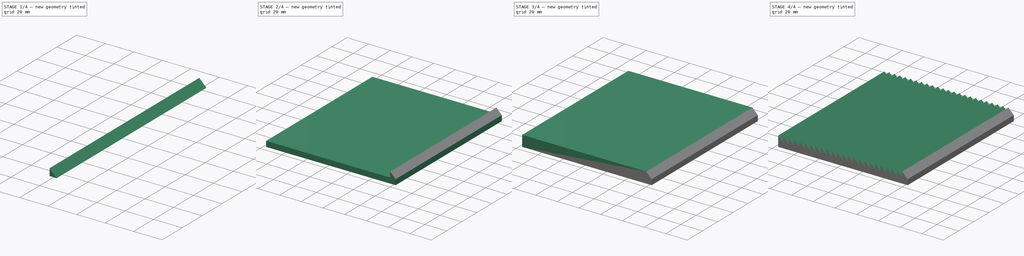
[diagram: build sequence overview — one tinted view per stage of 4, left to right]
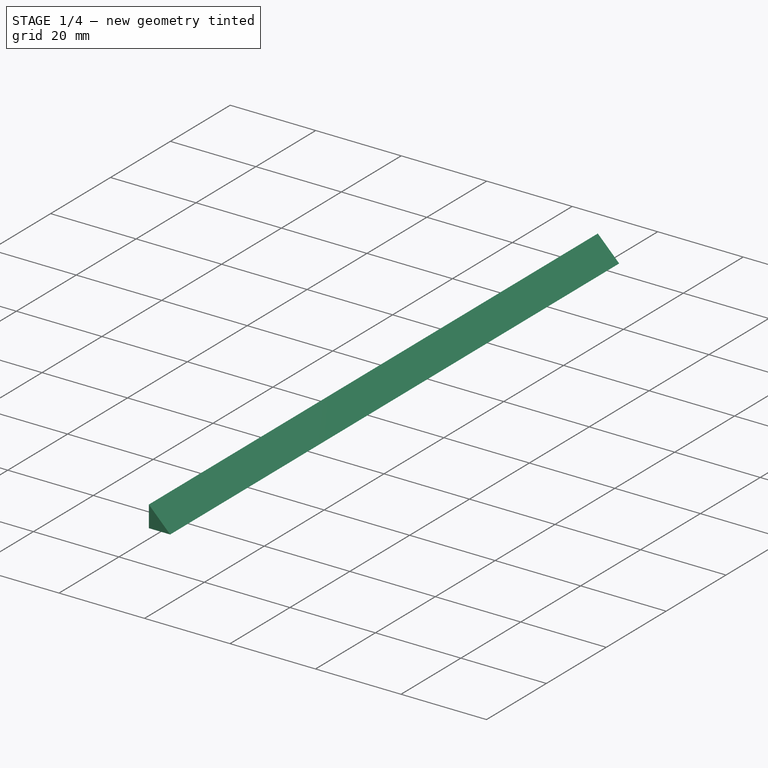
[diagram: stage 1 of 4 — iso view after this stage's code; geometry added in this stage tinted green]
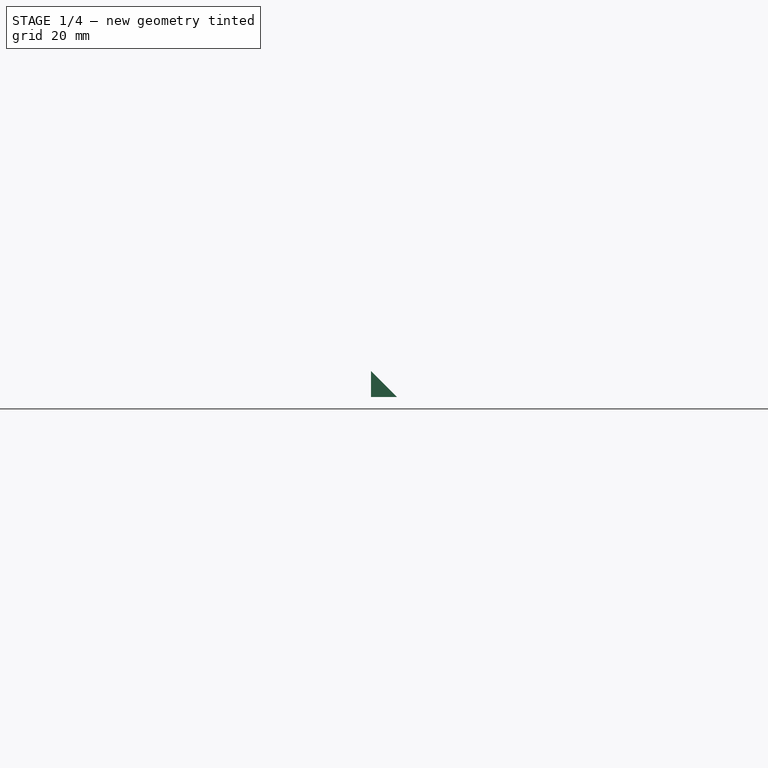
[diagram: stage 1 of 4 — front view after this stage's code; geometry added in this stage tinted green]
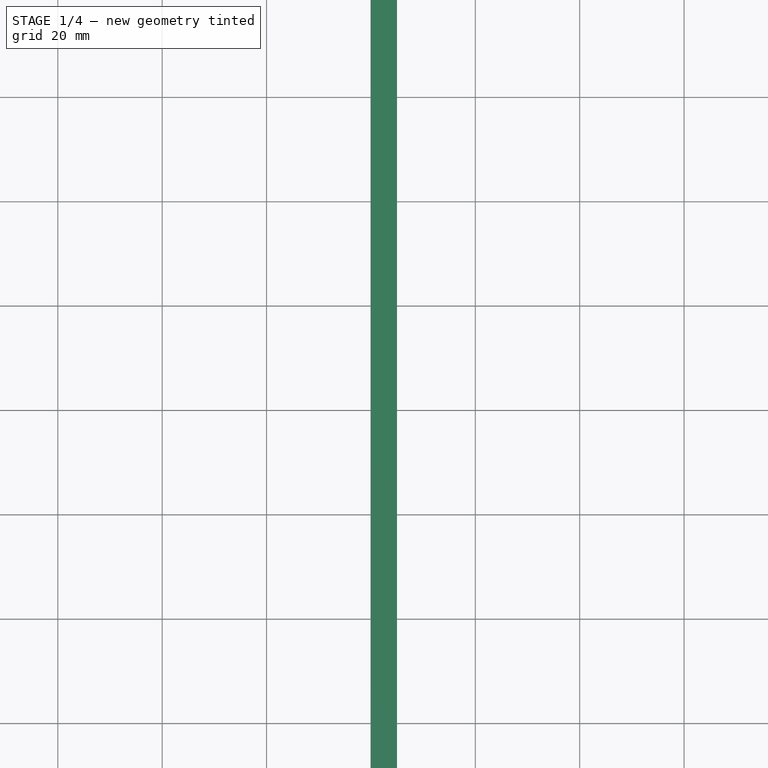
[diagram: stage 1 of 4 — top view after this stage's code; geometry added in this stage tinted green]
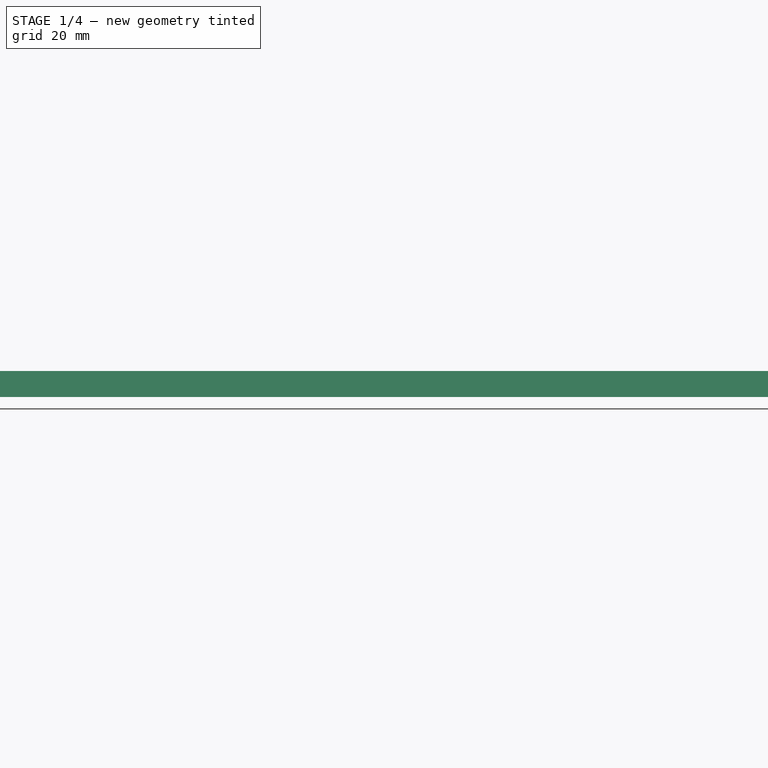
[diagram: stage 1 of 4 — right view after this stage's code; geometry added in this stage tinted green]
FCSTD DOCUMENT  (FreeCAD 1.0R39109 (Git))
Label: 5mm5mm
License: All rights reserved
LicenseURL: https://en.wikipedia.org/wiki/All_rights_reserved
objects: PartDesign::Pad×6, PartDesign::Pocket×5, Sketcher::SketchObject×4, PartDesign::Body×1
note: 42 computed .brp shape members not serialized (recipe doc carries the construction recipe); baked Part::Feature solids carry a one-line shape summary decoded from their .brp

FEATURE [Sketcher::SketchObject] Sketch
  ArcFitTolerance = 1e-06
  AttachmentSupport = -> [XY_Plane]
  FullyConstrained = true
  MakeInternals = false
  MapMode = 5
  sketch-geometry (4):
    g0: LineSegment StartX=0 StartY=0 StartZ=0 EndX=5 EndY=0 EndZ=0
    g1: LineSegment StartX=5 StartY=0 StartZ=0 EndX=5 EndY=140 EndZ=0
    g2: LineSegment StartX=5 StartY=140 StartZ=0 EndX=0 EndY=140 EndZ=0
    g3: LineSegment StartX=0 StartY=140 StartZ=0 EndX=0 EndY=0 EndZ=0
  constraints (11):
    c: Coincident(g0,g1)
    c: Coincident(g1,g2)
    c: Coincident(g2,g3)
    c: Coincident(g3,g0)
    c: Horizontal(g0)
    c: Horizontal(g2)
    c: Vertical(g1)
    c: Vertical(g3)
    c: Distance(g1,g3) = 5
    c: Distance(g0,g2) = 140
    c: Coincident(g0,g-1)
FEATURE [PartDesign::Pad] Pad
  Direction = (0,0,1)
  Length = 10
  Length2 = 10
  Profile = -> Sketch
  ReferenceAxis = -> Sketch [N_Axis]
  Refine = true
  Suppressed = false
  Type = 0
FEATURE [Sketcher::SketchObject] Sketch001
  ArcFitTolerance = 1e-06
  AttachmentSupport = -> [Pad]
  FullyConstrained = true
  MakeInternals = false
  MapMode = 5
  Placement = pos=(0,0,0) rot=(1,0,0;1.5708rad)
  sketch-geometry (3):
    g0: LineSegment StartX=0 StartY=0 StartZ=0 EndX=0 EndY=5 EndZ=0
    g1: LineSegment StartX=0 StartY=0 StartZ=0 EndX=5 EndY=0 EndZ=0
    g2: LineSegment StartX=5 StartY=0 StartZ=0 EndX=0 EndY=5 EndZ=0
  constraints (8):
    c: Distance(g0) = 5
    c: Coincident(g0,g-1)
    c: PointOnObject(g0,g-2)
    c: Distance(g1) = 5
    c: Coincident(g1,g0)
    c: PointOnObject(g1,g-1)
    c: Coincident(g2,g1)
    c: Coincident(g2,g0)
FEATURE [PartDesign::Pad] Pad001
  BaseFeature = -> Pad
  Direction = (0,-1,2e-16)
  Length = 10
  Length2 = 10
  Profile = -> Sketch001
  ReferenceAxis = -> Sketch001 [N_Axis]
  Refine = true
  Suppressed = false
  Type = 0
FEATURE [PartDesign::Pocket] Pocket
  BaseFeature = -> Pad001
  Direction = (0,1,0)
  Length = 140
  Length2 = 5
  Profile = -> Pad001 [Face1]
  Refine = true
  Suppressed = false
  Type = 0
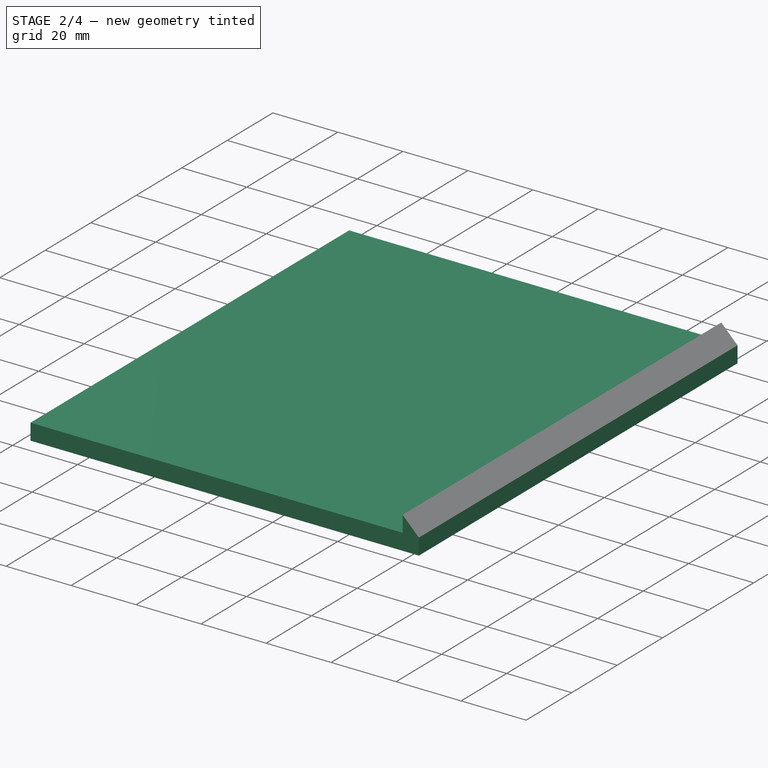
[diagram: stage 2 of 4 — iso view after this stage's code; geometry added in this stage tinted green]
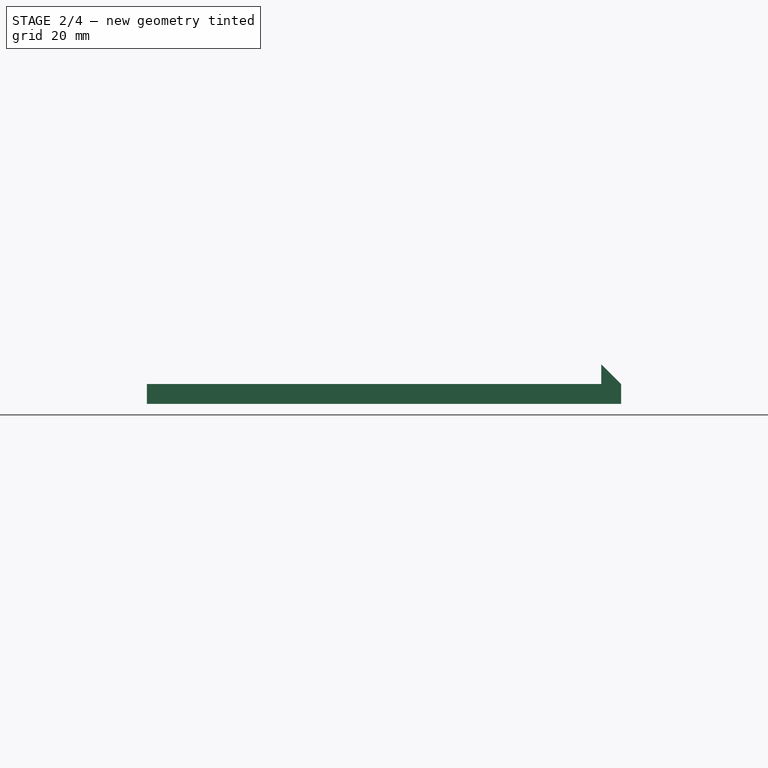
[diagram: stage 2 of 4 — front view after this stage's code; geometry added in this stage tinted green]
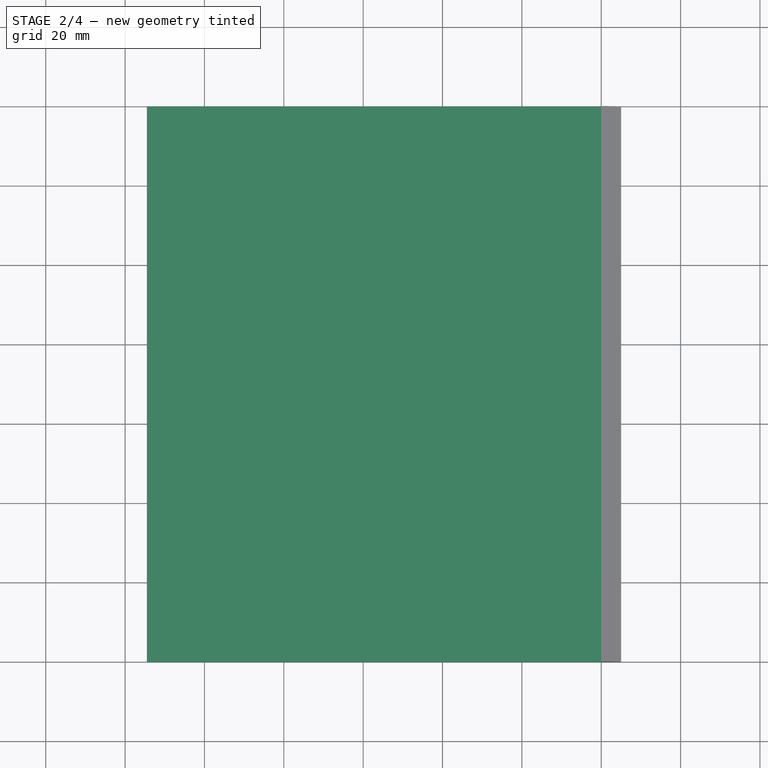
[diagram: stage 2 of 4 — top view after this stage's code; geometry added in this stage tinted green]
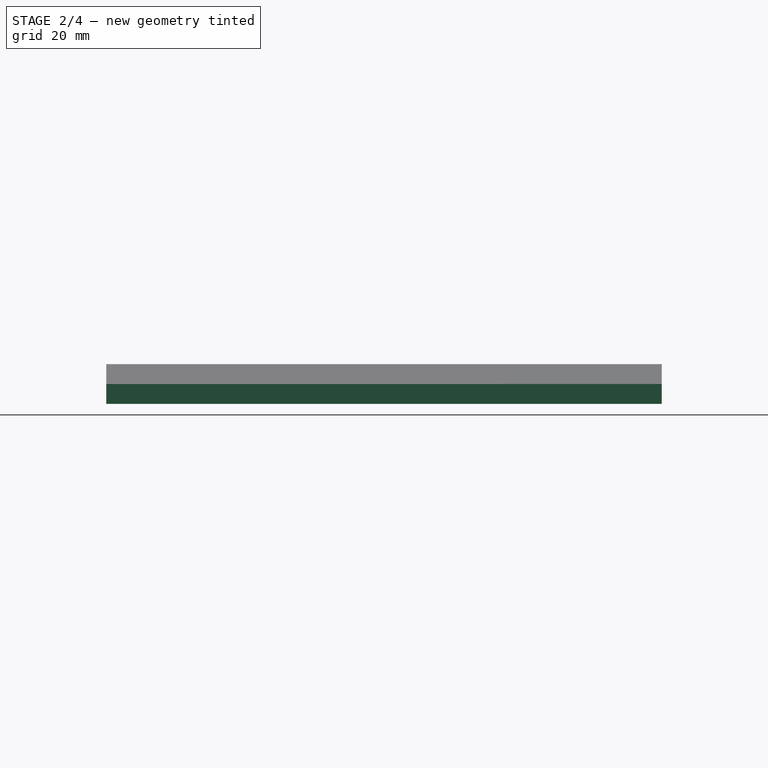
[diagram: stage 2 of 4 — right view after this stage's code; geometry added in this stage tinted green]
FEATURE [PartDesign::Pocket] Pocket001
  BaseFeature = -> Pocket
  Direction = (0,1,0)
  Length = 10
  Length2 = 5
  Profile = -> Pocket [Face3]
  Refine = true
  Suppressed = false
  Type = 0
FEATURE [PartDesign::Pad] Pad002
  BaseFeature = -> Pocket001
  Direction = (0,0,-1)
  Length = 5
  Length2 = 10
  Profile = -> Pocket001 [Face1]
  Refine = true
  Suppressed = false
  Type = 0
FEATURE [Sketcher::SketchObject] Sketch002
  ArcFitTolerance = 1e-06
  AttachmentSupport = -> [Pad002]
  FullyConstrained = true
  MakeInternals = false
  MapMode = 5
  Placement = pos=(0,0,0) rot=(0.57735,-0.57735,-0.57735;2.0944rad)
  sketch-geometry (4):
    g0: LineSegment StartX=0 StartY=0 StartZ=0 EndX=-140 EndY=0 EndZ=0
    g1: LineSegment StartX=-140 StartY=0 StartZ=0 EndX=-140 EndY=-5 EndZ=0
    g2: LineSegment StartX=-140 StartY=-5 StartZ=0 EndX=0 EndY=-5 EndZ=0
    g3: LineSegment StartX=0 StartY=-5 StartZ=0 EndX=0 EndY=0 EndZ=0
  constraints (11):
    c: Coincident(g0,g1)
    c: Coincident(g1,g2)
    c: Coincident(g2,g3)
    c: Coincident(g3,g0)
    c: Horizontal(g0)
    c: Horizontal(g2)
    c: Vertical(g1)
    c: Vertical(g3)
    c: Distance(g1,g3) = 140
    c: Distance(g0,g2) = 5
    c: Coincident(g0,g-1)
FEATURE [PartDesign::Pad] Pad003
  BaseFeature = -> Pad002
  Direction = (-1,0,0)
  Length = 114.5
  Length2 = 10
  Profile = -> Sketch002
  ReferenceAxis = -> Sketch002 [N_Axis]
  Refine = true
  Suppressed = false
  Type = 0
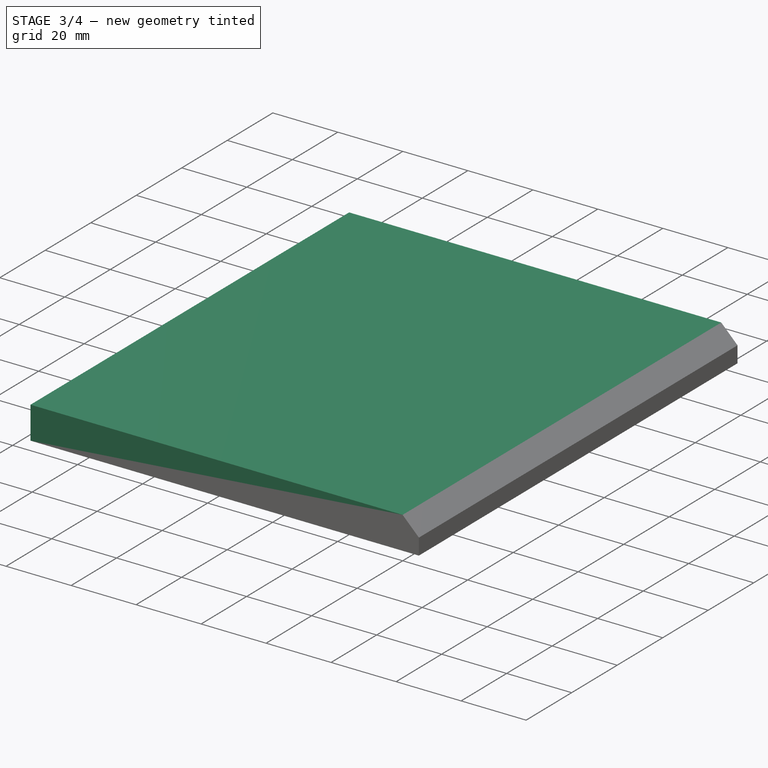
[diagram: stage 3 of 4 — iso view after this stage's code; geometry added in this stage tinted green]
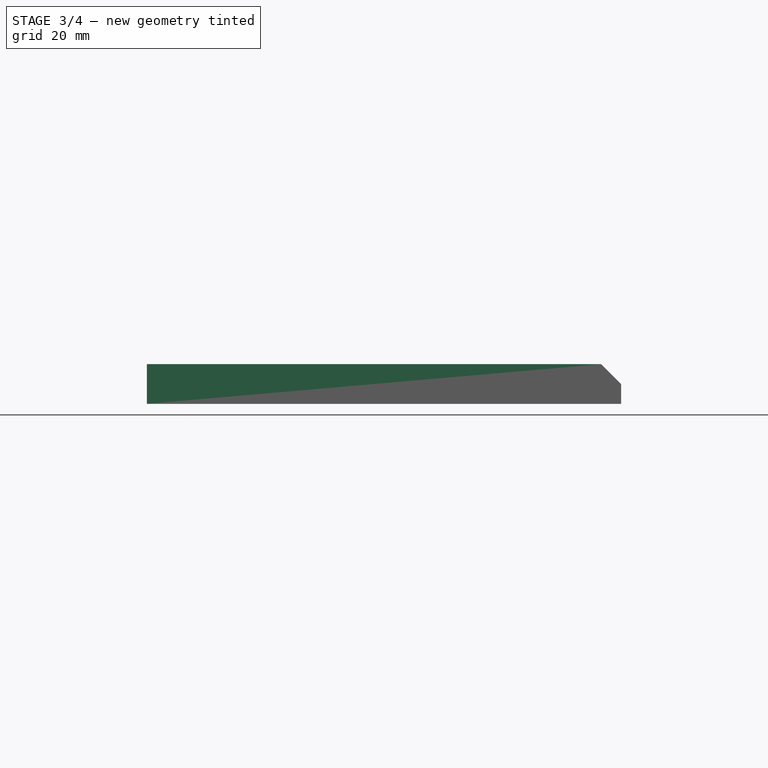
[diagram: stage 3 of 4 — front view after this stage's code; geometry added in this stage tinted green]
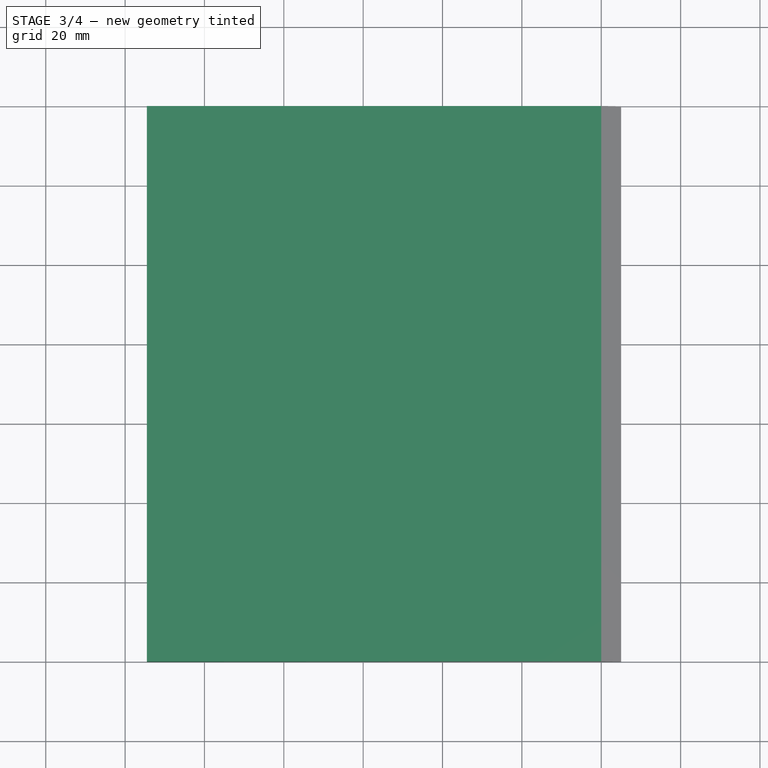
[diagram: stage 3 of 4 — top view after this stage's code; geometry added in this stage tinted green]
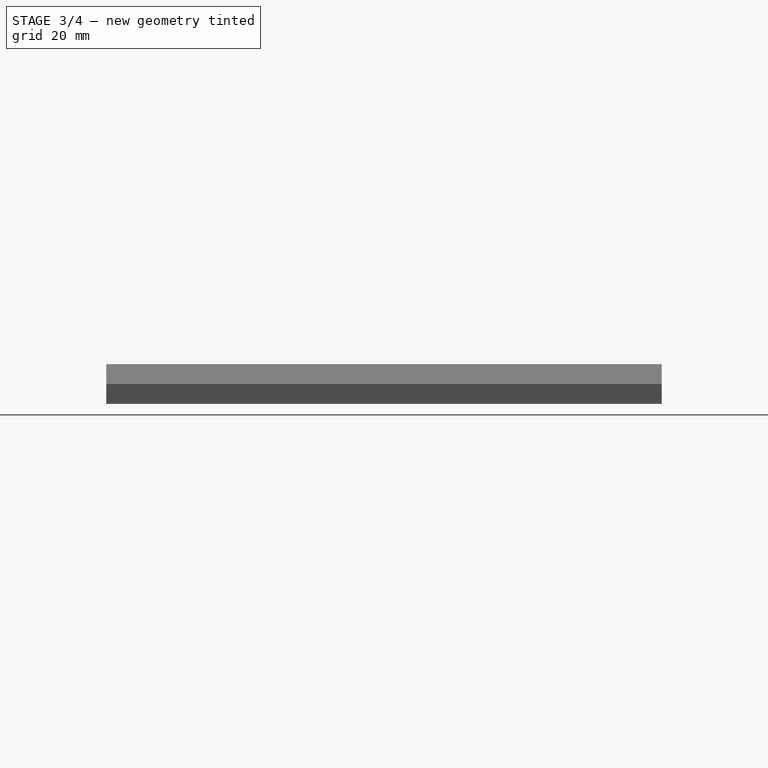
[diagram: stage 3 of 4 — right view after this stage's code; geometry added in this stage tinted green]
FEATURE [PartDesign::Pad] Pad004
  BaseFeature = -> Pad003
  Direction = (-1,0,0)
  Length = 135
  Length2 = 10
  Profile = -> Pad003 [Face2]
  Refine = true
  Suppressed = false
  Type = 0
FEATURE [PartDesign::Pocket] Pocket002
  BaseFeature = -> Pad004
  Direction = (0,0,1)
  Length = 5
  Length2 = 5
  Profile = -> Pad004 [Face7]
  Refine = true
  Suppressed = false
  Type = 0
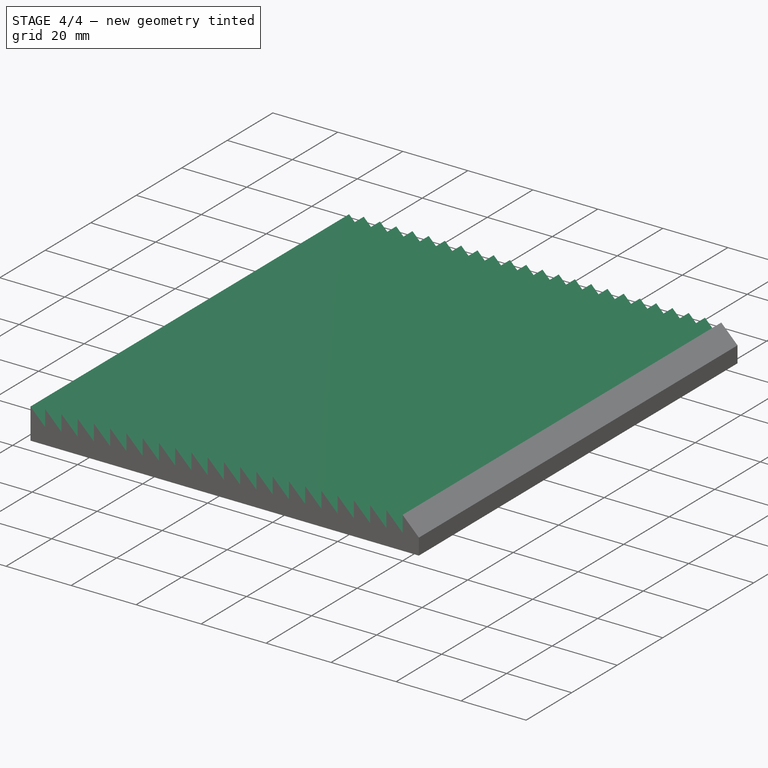
[diagram: stage 4 of 4 — iso view after this stage's code; geometry added in this stage tinted green]
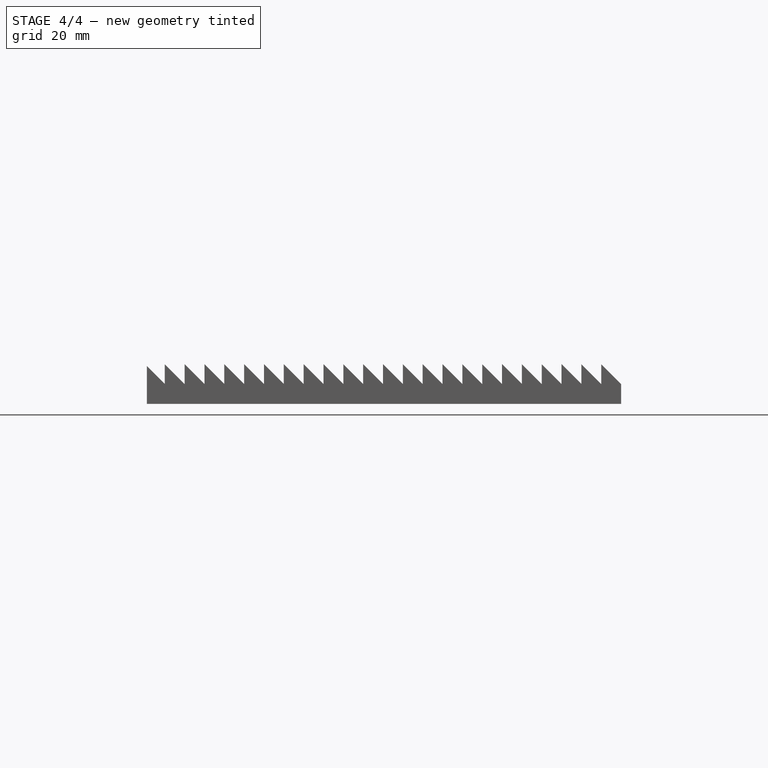
[diagram: stage 4 of 4 — front view after this stage's code; geometry added in this stage tinted green]
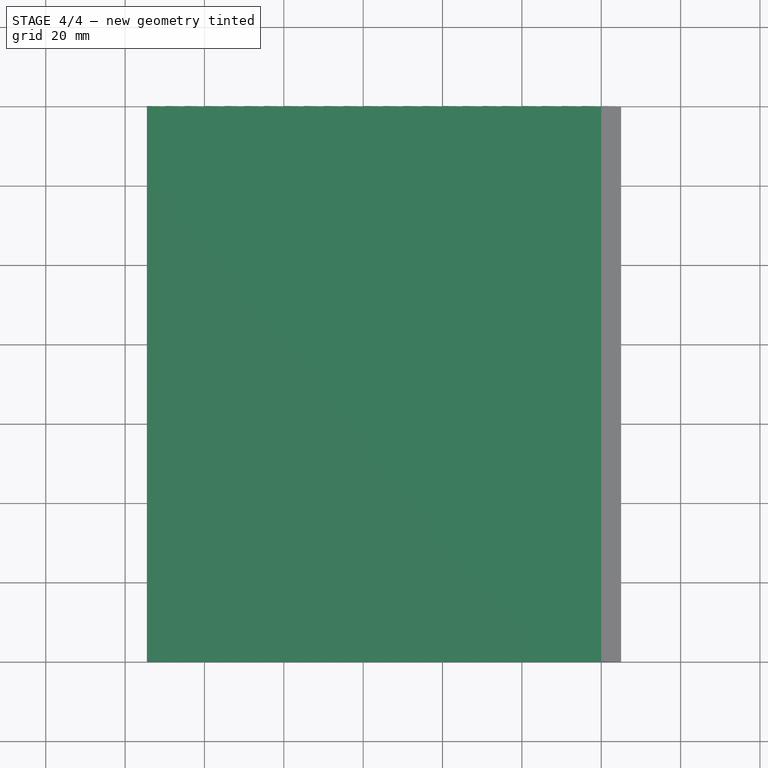
[diagram: stage 4 of 4 — top view after this stage's code; geometry added in this stage tinted green]
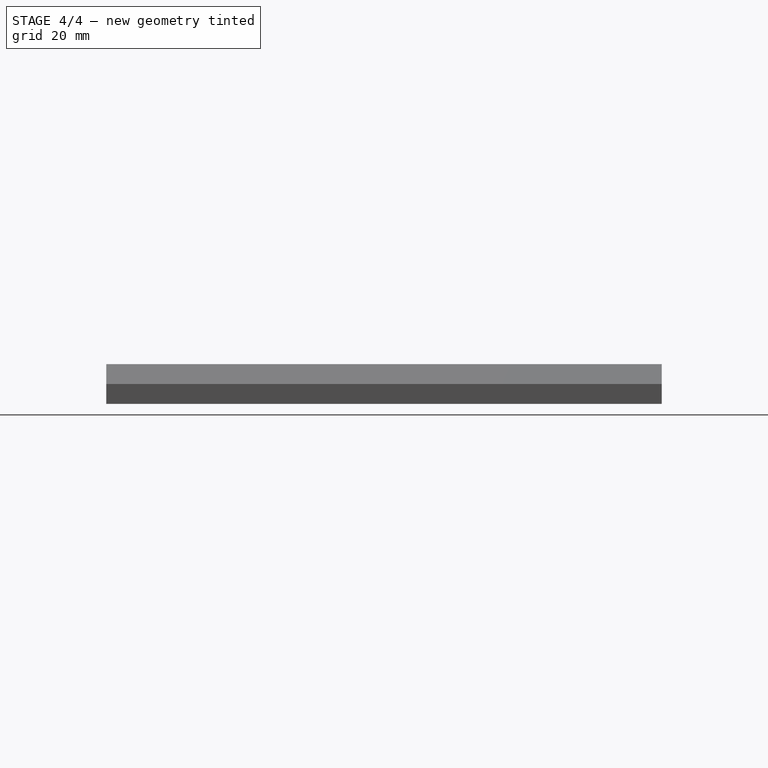
[diagram: stage 4 of 4 — right view after this stage's code; geometry added in this stage tinted green]
FEATURE [Sketcher::SketchObject] Sketch003
  ArcFitTolerance = 1e-06
  AttachmentSupport = -> [Pocket002]
  FullyConstrained = true
  MakeInternals = false
  MapMode = 5
  Placement = pos=(0,5e-16,0) rot=(1,0,0;1.5708rad)
  sketch-geometry (72):
    g0: LineSegment StartX=0 StartY=0 StartZ=0 EndX=5 EndY=0 EndZ=0
    g1: LineSegment StartX=0 StartY=0 StartZ=0 EndX=0 EndY=5 EndZ=0
    g2: LineSegment StartX=0 StartY=5 StartZ=0 EndX=5 EndY=0 EndZ=0
    g3: LineSegment StartX=0 StartY=0 StartZ=0 EndX=-5 EndY=0 EndZ=0
    g4: LineSegment StartX=-5 StartY=0 StartZ=0 EndX=-5 EndY=5 EndZ=0
    g5: LineSegment StartX=-5 StartY=5 StartZ=0 EndX=0 EndY=0 EndZ=0
    g6: LineSegment StartX=-5 StartY=0 StartZ=0 EndX=-10 EndY=0 EndZ=0
    g7: LineSegment StartX=-10 StartY=0 StartZ=0 EndX=-15 EndY=0 EndZ=0
    g8: LineSegment StartX=-15 StartY=0 StartZ=0 EndX=-20 EndY=0 EndZ=0
    g9: LineSegment StartX=-20 StartY=0 StartZ=0 EndX=-25 EndY=0 EndZ=0
    g10: LineSegment StartX=-25 StartY=0 StartZ=0 EndX=-30 EndY=0 EndZ=0
    g11: LineSegment StartX=-30 StartY=0 StartZ=0 EndX=-35 EndY=0 EndZ=0
    g12: LineSegment StartX=-35 StartY=0 StartZ=0 EndX=-40 EndY=0 EndZ=0
    g13: LineSegment StartX=-40 StartY=0 StartZ=0 EndX=-45 EndY=0 EndZ=0
    g14: LineSegment StartX=-45 StartY=0 StartZ=0 EndX=-50 EndY=0 EndZ=0
    g15: LineSegment StartX=-50 StartY=0 StartZ=0 EndX=-55 EndY=0 EndZ=0
    g16: LineSegment StartX=-55 StartY=0 StartZ=0 EndX=-60 EndY=0 EndZ=0
    g17: LineSegment StartX=-60 StartY=0 StartZ=0 EndX=-65 EndY=0 EndZ=0
    g18: LineSegment StartX=-65 StartY=0 StartZ=0 EndX=-70 EndY=0 EndZ=0
    g19: LineSegment StartX=-70 StartY=0 StartZ=0 EndX=-75 EndY=0 EndZ=0
    g20: LineSegment StartX=-75 StartY=0 StartZ=0 EndX=-80 EndY=0 EndZ=0
    g21: LineSegment StartX=-80 StartY=0 StartZ=0 EndX=-85 EndY=0 EndZ=0
    g22: LineSegment StartX=-85 StartY=0 StartZ=0 EndX=-90 EndY=0 EndZ=0
    g23: LineSegment StartX=-90 StartY=0 StartZ=0 EndX=-95 EndY=0 EndZ=0
    g24: LineSegment StartX=-95 StartY=0 StartZ=0 EndX=-100 EndY=0 EndZ=0
    g25: LineSegment StartX=-100 StartY=0 StartZ=0 EndX=-105 EndY=0 EndZ=0
    g26: LineSegment StartX=-105 StartY=0 StartZ=0 EndX=-110 EndY=0 EndZ=0
    g27: LineSegment StartX=-110 StartY=0 StartZ=0 EndX=-115 EndY=0 EndZ=0
    g28: LineSegment StartX=-115 StartY=0 StartZ=0 EndX=-115 EndY=5 EndZ=0
    g29: LineSegment StartX=-115 StartY=5 StartZ=0 EndX=-110 EndY=0 EndZ=0
    g30: LineSegment StartX=-110 StartY=0 StartZ=0 EndX=-110 EndY=5 EndZ=0
    g31: LineSegment StartX=-105 StartY=0 StartZ=0 EndX=-105 EndY=5 EndZ=0
    g32: LineSegment StartX=-100 StartY=0 StartZ=0 EndX=-100 EndY=5 EndZ=0
    g33: LineSegment StartX=-95 StartY=0 StartZ=0 EndX=-95 EndY=5 EndZ=0
    g34: LineSegment StartX=-90 StartY=0 StartZ=0 EndX=-90 EndY=5 EndZ=0
    g35: LineSegment StartX=-85 StartY=0 StartZ=0 EndX=-85 EndY=5 EndZ=0
    g36: LineSegment StartX=-80 StartY=0 StartZ=0 EndX=-80 EndY=5 EndZ=0
    g37: LineSegment StartX=-75 StartY=0 StartZ=0 EndX=-75 EndY=5 EndZ=0
    g38: LineSegment StartX=-70 StartY=0 StartZ=0 EndX=-70 EndY=5 EndZ=0
    g39: LineSegment StartX=-65 StartY=0 StartZ=0 EndX=-65 EndY=5 EndZ=0
    g40: LineSegment StartX=-60 StartY=0 StartZ=0 EndX=-60 EndY=5 EndZ=0
    g41: LineSegment StartX=-55 StartY=0 StartZ=0 EndX=-55 EndY=5 EndZ=0
    g42: LineSegment StartX=-50 StartY=0 StartZ=0 EndX=-50 EndY=5 EndZ=0
    g43: LineSegment StartX=-45 StartY=0 StartZ=0 EndX=-45 EndY=5 EndZ=0
    g44: LineSegment StartX=-40 StartY=0 StartZ=0 EndX=-40 EndY=5 EndZ=0
    g45: LineSegment StartX=-35 StartY=0 StartZ=0 EndX=-35 EndY=5 EndZ=0
    g46: LineSegment StartX=-30 StartY=0 StartZ=0 EndX=-30 EndY=5 EndZ=0
    g47: LineSegment StartX=-25 StartY=0 StartZ=0 EndX=-25 EndY=5 EndZ=0
    g48: LineSegment StartX=-20 StartY=0 StartZ=0 EndX=-20 EndY=5 EndZ=0
    g49: LineSegment StartX=-15 StartY=0 StartZ=0 EndX=-15 EndY=5 EndZ=0
    g50: LineSegment StartX=-10 StartY=0 StartZ=0 EndX=-10 EndY=5 EndZ=0
    g51: LineSegment StartX=-10 StartY=5 StartZ=0 EndX=-5 EndY=0 EndZ=0
    g52: LineSegment StartX=-15 StartY=5 StartZ=0 EndX=-10 EndY=0 EndZ=0
    g53: LineSegment StartX=-20 StartY=5 StartZ=0 EndX=-15 EndY=0 EndZ=0
    g54: LineSegment StartX=-25 StartY=5 StartZ=0 EndX=-20 EndY=0 EndZ=0
    g55: LineSegment StartX=-30 StartY=5 StartZ=0 EndX=-25 EndY=0 EndZ=0
    g56: LineSegment StartX=-35 StartY=5 StartZ=0 EndX=-30 EndY=0 EndZ=0
    g57: LineSegment StartX=-40 StartY=5 StartZ=0 EndX=-35 EndY=0 EndZ=0
    g58: LineSegment StartX=-45 StartY=5 StartZ=0 EndX=-40 EndY=0 EndZ=0
    g59: LineSegment StartX=-50 StartY=5 StartZ=0 EndX=-45 EndY=0 EndZ=0
    g60: LineSegment StartX=-55 StartY=5 StartZ=0 EndX=-50 EndY=0 EndZ=0
    g61: LineSegment StartX=-60 StartY=5 StartZ=0 EndX=-55 EndY=0 EndZ=0
    g62: LineSegment StartX=-65 StartY=5 StartZ=0 EndX=-60 EndY=0 EndZ=0
    g63: LineSegment StartX=-70 StartY=5 StartZ=0 EndX=-65 EndY=0 EndZ=0
    g64: LineSegment StartX=-75 StartY=5 StartZ=0 EndX=-70 EndY=0 EndZ=0
    g65: LineSegment StartX=-80 StartY=5 StartZ=0 EndX=-75 EndY=0 EndZ=0
    g66: LineSegment StartX=-85 StartY=5 StartZ=0 EndX=-80 EndY=0 EndZ=0
    g67: LineSegment StartX=-90 StartY=5 StartZ=0 EndX=-85 EndY=0 EndZ=0
    g68: LineSegment StartX=-95 StartY=5 StartZ=0 EndX=-90 EndY=0 EndZ=0
    g69: LineSegment StartX=-100 StartY=5 StartZ=0 EndX=-95 EndY=0 EndZ=0
    g70: LineSegment StartX=-105 StartY=5 StartZ=0 EndX=-100 EndY=0 EndZ=0
    g71: LineSegment StartX=-110 StartY=5 StartZ=0 EndX=-105 EndY=0 EndZ=0
  constraints (192):
    c: Distance(g0) = 5
    c: Coincident(g0,g-1)
    c: PointOnObject(g0,g-1)
    c: Distance(g1) = 5
    c: Coincident(g1,g0)
    c: PointOnObject(g1,g-2)
    c: Coincident(g2,g1)
    c: Coincident(g2,g0)
    c: Distance(g3) = 5
    c: Coincident(g3,g0)
    c: PointOnObject(g3,g-1)
    c: Distance(g4) = 5
    c: Coincident(g4,g3)
    c: Vertical(g4)
    c: Coincident(g5,g4)
    c: Coincident(g5,g0)
    c: Distance(g6) = 5
    c: Coincident(g6,g3)
    c: PointOnObject(g6,g-1)
    c: Distance(g7) = 5
    c: Coincident(g7,g6)
    c: PointOnObject(g7,g-1)
    c: Distance(g8) = 5
    c: Coincident(g8,g7)
    c: PointOnObject(g8,g-1)
    c: Distance(g9) = 5
    c: Coincident(g9,g8)
    c: PointOnObject(g9,g-1)
    c: Distance(g10) = 5
    c: Coincident(g10,g9)
    c: PointOnObject(g10,g-1)
    c: Distance(g11) = 5
    c: Coincident(g11,g10)
    c: PointOnObject(g11,g-1)
    c: Distance(g12) = 5
    c: Coincident(g12,g11)
    c: PointOnObject(g12,g-1)
    c: Distance(g13) = 5
    c: Coincident(g13,g12)
    c: PointOnObject(g13,g-1)
    c: Distance(g14) = 5
    c: Coincident(g14,g13)
    c: PointOnObject(g14,g-1)
    c: Distance(g15) = 5
    c: Coincident(g15,g14)
    c: PointOnObject(g15,g-1)
    c: Distance(g16) = 5
    c: Coincident(g16,g15)
    c: PointOnObject(g16,g-1)
    c: Distance(g17) = 5
    c: Coincident(g17,g16)
    c: PointOnObject(g17,g-1)
    c: Distance(g18) = 5
    c: Coincident(g18,g17)
    c: PointOnObject(g18,g-1)
    c: Distance(g19) = 5
    c: Coincident(g19,g18)
    c: PointOnObject(g19,g-1)
    c: Distance(g20) = 5
    c: Coincident(g20,g19)
    c: PointOnObject(g20,g-1)
    c: Distance(g21) = 5
    c: Coincident(g21,g20)
    c: PointOnObject(g21,g-1)
    c: Distance(g22) = 5
    c: Coincident(g22,g21)
    c: PointOnObject(g22,g-1)
    c: Distance(g23) = 5
    c: Coincident(g23,g22)
    c: PointOnObject(g23,g-1)
    c: Distance(g24) = 5
    c: Coincident(g24,g23)
    c: PointOnObject(g24,g-1)
    c: Distance(g25) = 5
    c: Coincident(g25,g24)
    c: PointOnObject(g25,g-1)
    c: Distance(g26) = 5
    c: Coincident(g26,g25)
    c: PointOnObject(g26,g-1)
    c: Distance(g27) = 5
    c: Coincident(g27,g26)
    c: PointOnObject(g27,g-1)
    c: Distance(g28) = 5
    c: Coincident(g28,g27)
    c: Vertical(g28)
    c: Coincident(g29,g28)
    c: Coincident(g29,g26)
    c: Distance(g30) = 5
    c: Coincident(g30,g26)
    c: Vertical(g30)
    c: Distance(g31) = 5
    c: Coincident(g31,g25)
    c: Vertical(g31)
    c: Distance(g32) = 5
    c: Coincident(g32,g24)
    c: Vertical(g32)
    c: Distance(g33) = 5
    c: Coincident(g33,g23)
    c: Vertical(g33)
    c: Distance(g34) = 5
    c: Coincident(g34,g22)
    c: Vertical(g34)
    c: Distance(g35) = 5
    c: Coincident(g35,g21)
    c: Vertical(g35)
    c: Distance(g36) = 5
    c: Coincident(g36,g20)
    c: Vertical(g36)
    c: Distance(g37) = 5
    c: Coincident(g37,g19)
    c: Vertical(g37)
    c: Distance(g38) = 5
    c: Coincident(g38,g18)
    c: Vertical(g38)
    c: Distance(g39) = 5
    c: Coincident(g39,g17)
    c: Vertical(g39)
    c: Distance(g40) = 5
    c: Coincident(g40,g16)
    c: Vertical(g40)
    c: Distance(g41) = 5
    c: Coincident(g41,g15)
    c: Vertical(g41)
    c: Distance(g42) = 5
    c: Coincident(g42,g14)
    c: Vertical(g42)
    c: Distance(g43) = 5
    c: Coincident(g43,g13)
    c: Vertical(g43)
    c: Distance(g44) = 5
    c: Coincident(g44,g12)
    c: Vertical(g44)
    c: Distance(g45) = 5
    c: Coincident(g45,g11)
    c: Vertical(g45)
    c: Distance(g46) = 5
    c: Coincident(g46,g10)
    c: Vertical(g46)
    c: Distance(g47) = 5
    c: Coincident(g47,g9)
    c: Vertical(g47)
    c: Distance(g48) = 5
    c: Coincident(g48,g8)
    c: Vertical(g48)
    c: Distance(g49) = 5
    c: Coincident(g49,g7)
    c: Vertical(g49)
    c: Distance(g50) = 5
    c: Coincident(g50,g6)
    c: Vertical(g50)
    c: Coincident(g51,g50)
    c: Coincident(g51,g3)
    c: Coincident(g52,g49)
    c: Coincident(g52,g6)
    c: Coincident(g53,g48)
    c: Coincident(g53,g7)
    c: Coincident(g54,g47)
    c: Coincident(g54,g8)
    c: Coincident(g55,g46)
    c: Coincident(g55,g9)
    c: Coincident(g56,g45)
    c: Coincident(g56,g10)
    c: Coincident(g57,g44)
    c: Coincident(g57,g11)
    c: Coincident(g58,g43)
    c: Coincident(g58,g12)
    c: Coincident(g59,g42)
    c: Coincident(g59,g13)
    c: Coincident(g60,g41)
    c: Coincident(g60,g14)
    c: Coincident(g61,g40)
    c: Coincident(g61,g15)
    c: Coincident(g62,g39)
    c: Coincident(g62,g16)
    c: Coincident(g63,g38)
    c: Coincident(g63,g17)
    c: Coincident(g64,g37)
    c: Coincident(g64,g18)
    c: Coincident(g65,g36)
    c: Coincident(g65,g19)
    c: Coincident(g66,g35)
    c: Coincident(g66,g20)
    c: Coincident(g67,g34)
    c: Coincident(g67,g21)
    c: Coincident(g68,g33)
    c: Coincident(g68,g22)
    c: Coincident(g69,g32)
    c: Coincident(g69,g23)
    c: Coincident(g70,g31)
    c: Coincident(g70,g24)
    c: Coincident(g71,g30)
    c: Coincident(g71,g25)
FEATURE [PartDesign::Pad] Pad005
  BaseFeature = -> Pocket002
  Direction = (0,-1,2e-16)
  Length = 10
  Length2 = 10
  Profile = -> Sketch003
  ReferenceAxis = -> Sketch003 [N_Axis]
  Refine = true
  Suppressed = false
  Type = 0
FEATURE [PartDesign::Pocket] Pocket003
  BaseFeature = -> Pad005
  Direction = (0,1,0)
  Length = 150
  Length2 = 5
  Profile = -> Pad005 [Face28,Face27,Face26,Face25,Face24,Face23,Face22,Face21,Face20,Face19,Face18,Face17,Face16,Face15,Face14,Face13,Face12,Face11,Face10,Face9,Face8,Face7,Face6]
  Refine = true
  Suppressed = false
  Type = 0
FEATURE [PartDesign::Pocket] Pocket004
  BaseFeature = -> Pocket003
  Direction = (0,1,-2e-16)
  Length = 10
  Length2 = 5
  Profile = -> Pocket003 [Face6,Face10,Face11,Face12,Face13,Face14,Face15,Face16,Face17,Face18,Face19,Face20,Face21,Face22,Face23,Face24,Face25,Face26,Face27,Face28,Face29,Face30,Face31,Face32]
  Refine = true
  Suppressed = false
  Type = 0
FEATURE [PartDesign::Body] Body
  AllowCompound = false
  Group = -> [Sketch,Pad,Sketch001,Pad001,Pocket,Pocket001,Pad002,Sketch002,Pad003,Pad004,Pocket002,Sketch003,Pad005,Pocket003,Pocket004]
  Origin = -> Origin
  Tip = -> Pocket004
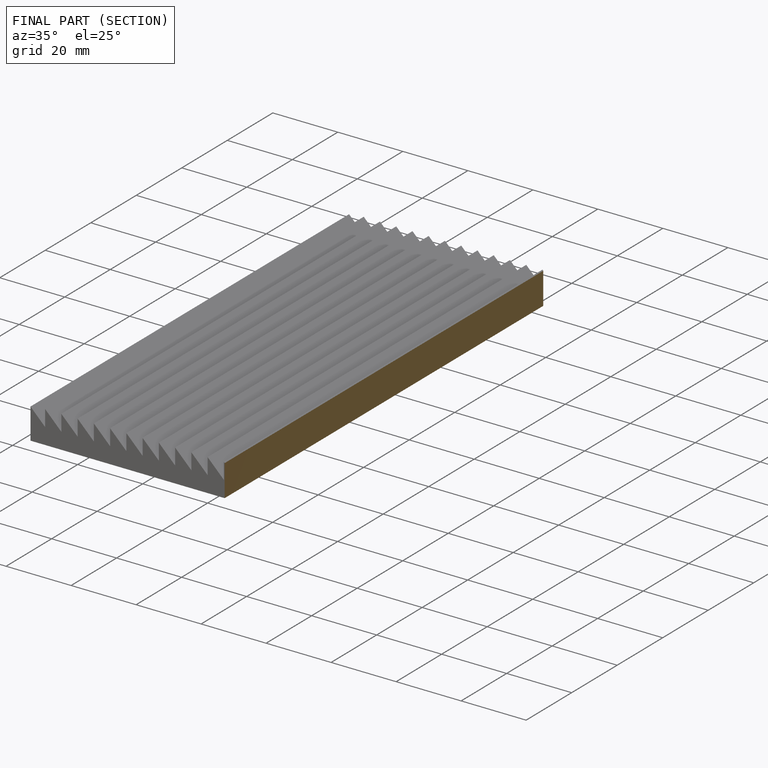
[diagram: finished part — half-section view (interior)]
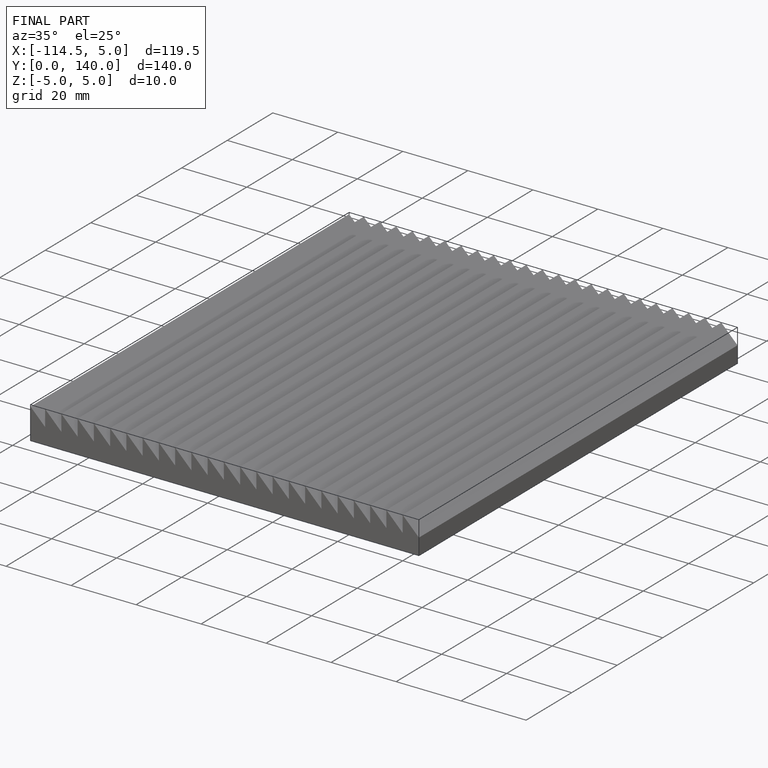
[diagram: finished part — iso view with bounding-box wireframe]
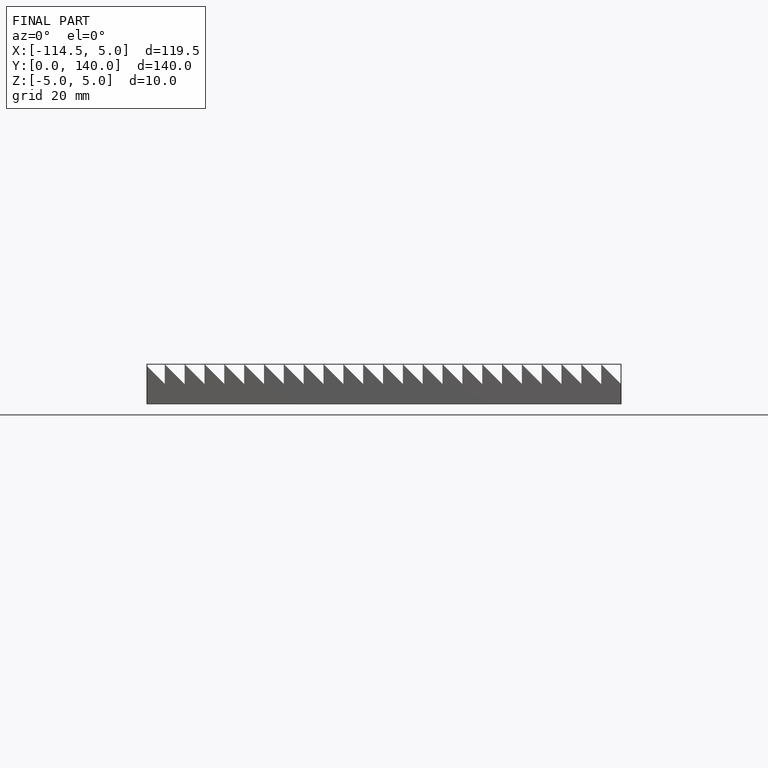
[diagram: finished part — front view with bounding-box wireframe]
